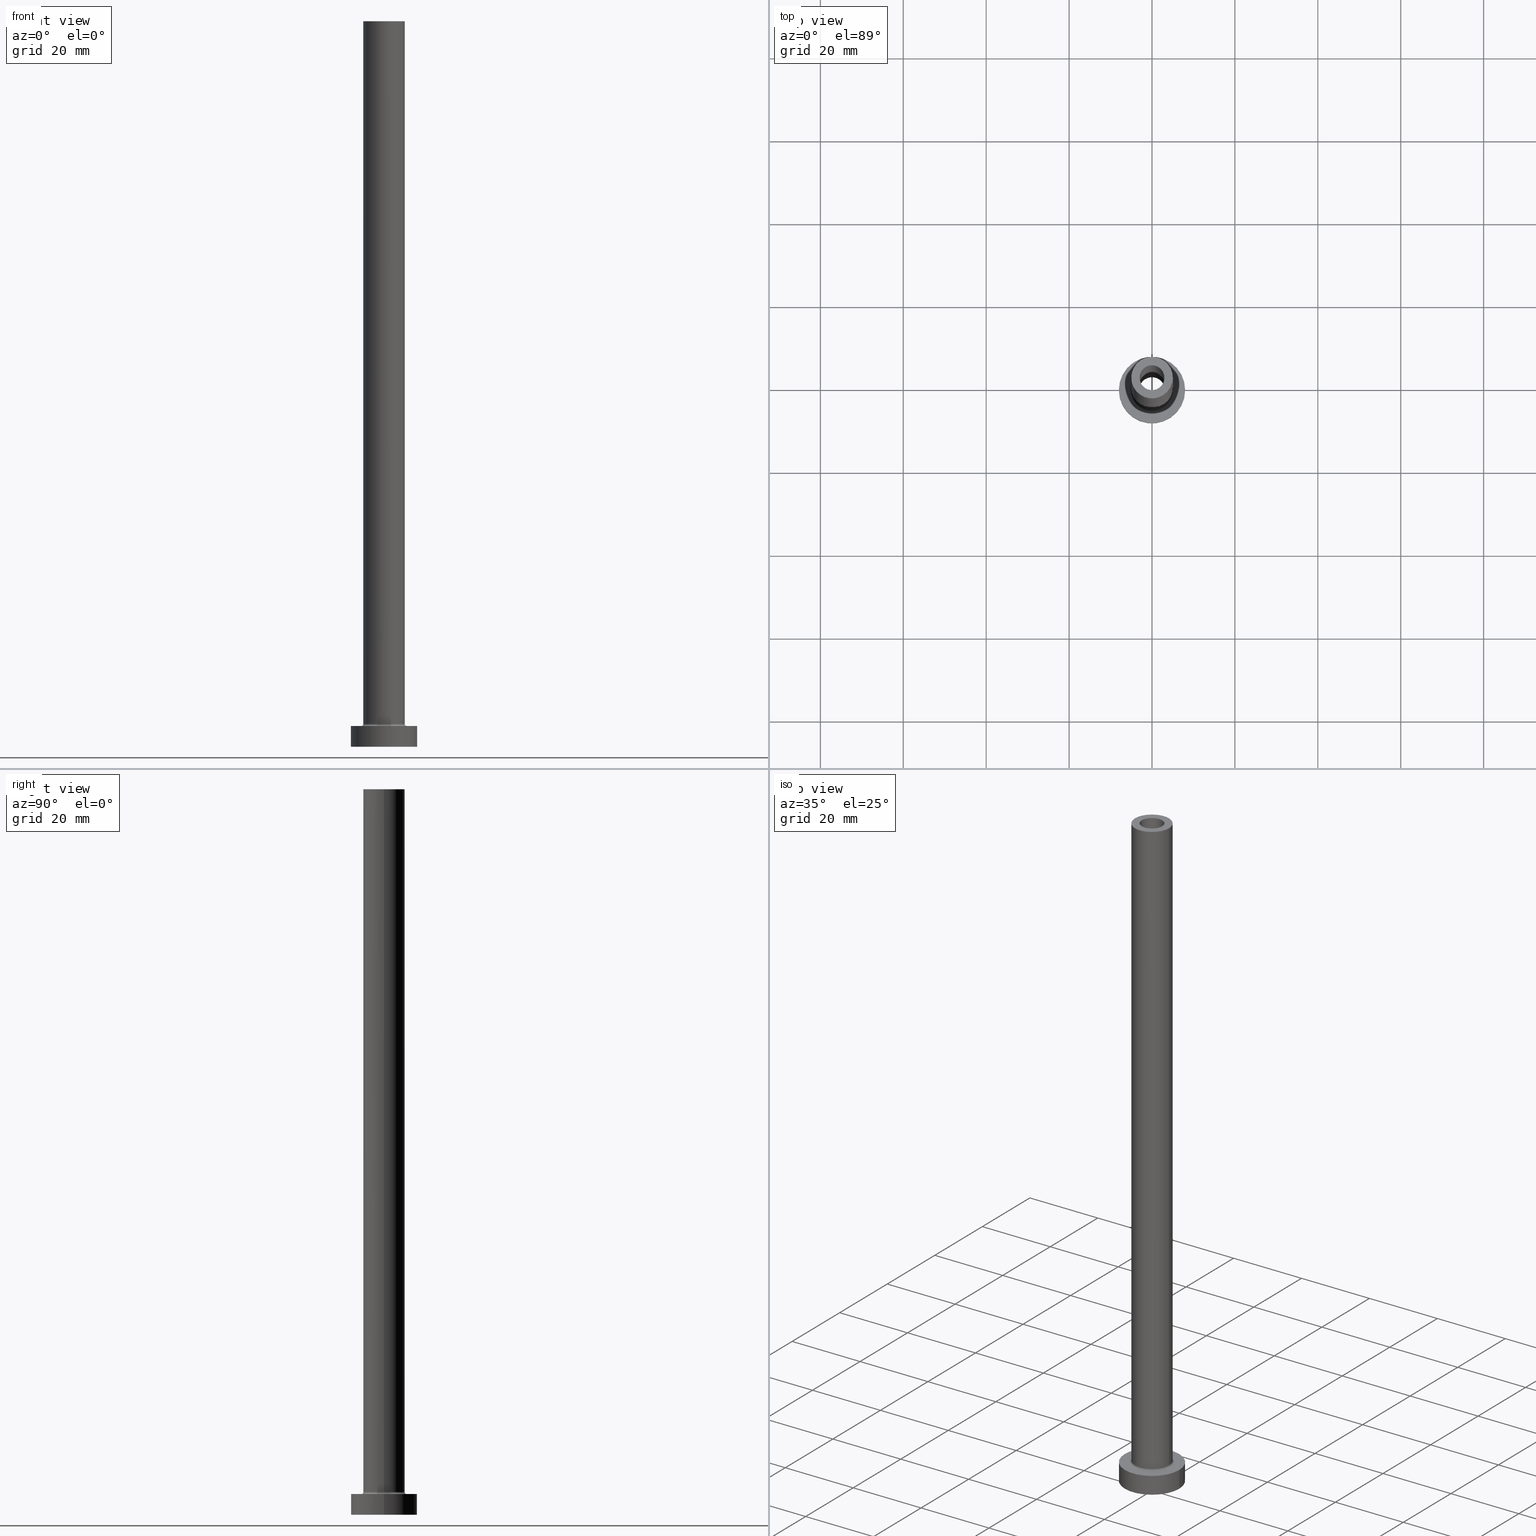
[diagram: canonical four-view strip — front | top / right | iso, engineering-drawing reading convention]
A machine part, canonical four-view strip (front | top / right | iso — engineering-drawing reading convention). The complete STEP part file that produces these views, byte-faithful:
ISO-10303-21;
HEADER;
FILE_DESCRIPTION (( 'STEP AP203' ),
    '1' );
FILE_NAME ('6269.STEP',
    '2023-02-13T09:14:00',
    ( '' ),
    ( '' ),
    'SwSTEP 2.0',
    'SolidWorks 2019',
    '' );
FILE_SCHEMA (( 'CONFIG_CONTROL_DESIGN' ));
ENDSEC;

DATA;
#1 = ORIENTED_EDGE ( 'NONE', *, *, #292, .F. ) ;
#2 = DIRECTION ( 'NONE',  ( 0.000000000000000000, 0.000000000000000000, -1.000000000000000000 ) ) ;
#3 = DIRECTION ( 'NONE',  ( 1.000000000000000000, 0.000000000000000000, 0.000000000000000000 ) ) ;
#4 = AXIS2_PLACEMENT_3D ( 'NONE', #392, #216, #356 ) ;
#5 = ADVANCED_FACE ( 'NONE', ( #42 ), #6, .F. ) ;
#6 = CYLINDRICAL_SURFACE ( 'NONE', #373, 3.000000000000000444 ) ;
#7 = MANIFOLD_SOLID_BREP ( 'Odebrat vysunut�m4', #27 ) ;
#8 = ORIENTED_EDGE ( 'NONE', *, *, #93, .T. ) ;
#9 = ORIENTED_EDGE ( 'NONE', *, *, #185, .F. ) ;
#10 = ADVANCED_FACE ( 'NONE', ( #237 ), #153, .T. ) ;
#11 = AXIS2_PLACEMENT_3D ( 'NONE', #416, #94, #137 ) ;
#12 = DIRECTION ( 'NONE',  ( -1.000000000000000000, 0.000000000000000000, 0.000000000000000000 ) ) ;
#13 = CARTESIAN_POINT ( 'NONE',  ( 0.000000000000000000, 0.000000000000000000, 175.0000000000000284 ) ) ;
#14 = CIRCLE ( 'NONE', #91, 3.000000000000000444 ) ;
#15 = CARTESIAN_POINT ( 'NONE',  ( 0.000000000000000000, 0.000000000000000000, 5.000000000000000000 ) ) ;
#16 = APPROVAL_STATUS ( 'not_yet_approved' ) ;
#17 = PERSON_AND_ORGANIZATION_ROLE ( 'classification_officer' ) ;
#18 = DIRECTION ( 'NONE',  ( -1.000000000000000000, 0.000000000000000000, 0.000000000000000000 ) ) ;
#19 = EDGE_LOOP ( 'NONE', ( #371, #306, #113, #347 ) ) ;
#20 = CIRCLE ( 'NONE', #81, 3.150000000000000355 ) ;
#21 = DIRECTION ( 'NONE',  ( 1.000000000000000000, 0.000000000000000000, 0.000000000000000000 ) ) ;
#22 = CARTESIAN_POINT ( 'NONE',  ( -5.000000000000000000, 0.000000000000000000, 5.500000000000005329 ) ) ;
#23 = DIRECTION ( 'NONE',  ( 1.000000000000000000, 0.000000000000000000, 0.000000000000000000 ) ) ;
#24 = DIRECTION ( 'NONE',  ( -0.000000000000000000, -0.000000000000000000, -1.000000000000000000 ) ) ;
#25 = CARTESIAN_POINT ( 'NONE',  ( 0.000000000000000000, 0.000000000000000000, 5.500000000000005329 ) ) ;
#26 = ADVANCED_FACE ( 'NONE', ( #407 ), #48, .F. ) ;
#27 = CLOSED_SHELL ( 'NONE', ( #5, #122, #135, #272, #346, #10, #322, #215, #229, #325, #141, #26, #252, #210 ) ) ;
#28 = FACE_OUTER_BOUND ( 'NONE', #76, .T. ) ;
#29 = FACE_OUTER_BOUND ( 'NONE', #19, .T. ) ;
#30 = CC_DESIGN_PERSON_AND_ORGANIZATION_ASSIGNMENT ( #340, #68, ( #363 ) ) ;
#31 = DIRECTION ( 'NONE',  ( 1.224646799147353207E-16, 1.000000000000000000, -0.000000000000000000 ) ) ;
#32 = DIRECTION ( 'NONE',  ( 0.000000000000000000, -1.000000000000000000, 0.000000000000000000 ) ) ;
#33 = AXIS2_PLACEMENT_3D ( 'NONE', #95, #253, #248 ) ;
#34 = CC_DESIGN_APPROVAL ( #397, ( #284 ) ) ;
#35 = VERTEX_POINT ( 'NONE', #401 ) ;
#36 = DIRECTION ( 'NONE',  ( 0.000000000000000000, 0.000000000000000000, -1.000000000000000000 ) ) ;
#37 = DIRECTION ( 'NONE',  ( 0.000000000000000000, 0.000000000000000000, -1.000000000000000000 ) ) ;
#38 = ORIENTED_EDGE ( 'NONE', *, *, #52, .T. ) ;
#39 = ORIENTED_EDGE ( 'NONE', *, *, #320, .F. ) ;
#40 = CARTESIAN_POINT ( 'NONE',  ( 0.000000000000000000, 0.000000000000000000, 0.000000000000000000 ) ) ;
#41 = PERSON_AND_ORGANIZATION_ROLE ( 'creator' ) ;
#42 = FACE_OUTER_BOUND ( 'NONE', #158, .T. ) ;
#43 = CYLINDRICAL_SURFACE ( 'NONE', #316, 8.000000000000000000 ) ;
#44 = ORIENTED_EDGE ( 'NONE', *, *, #112, .T. ) ;
#45 = FACE_OUTER_BOUND ( 'NONE', #377, .T. ) ;
#46 = CALENDAR_DATE ( 2023, 13, 2 ) ;
#47 = COORDINATED_UNIVERSAL_TIME_OFFSET ( 1, 0, .AHEAD. ) ;
#48 = CYLINDRICAL_SURFACE ( 'NONE', #359, 3.150000000000000355 ) ;
#49 = EDGE_CURVE ( 'NONE', #308, #437, #344, .T. ) ;
#50 = AXIS2_PLACEMENT_3D ( 'NONE', #142, #251, #387 ) ;
#51 = DIRECTION ( 'NONE',  ( 0.000000000000000000, 0.000000000000000000, 1.000000000000000000 ) ) ;
#52 = EDGE_CURVE ( 'NONE', #114, #35, #339, .T. ) ;
#53 = AXIS2_PLACEMENT_3D ( 'NONE', #128, #136, #21 ) ;
#54 = CARTESIAN_POINT ( 'NONE',  ( 0.000000000000000000, 0.000000000000000000, 138.9095454429505310 ) ) ;
#55 = FACE_BOUND ( 'NONE', #66, .T. ) ;
#56 = CARTESIAN_POINT ( 'NONE',  ( 0.000000000000000000, 0.000000000000000000, 0.000000000000000000 ) ) ;
#57 = CIRCLE ( 'NONE', #177, 0.5000000000000004441 ) ;
#58 = DIRECTION ( 'NONE',  ( 0.000000000000000000, 0.000000000000000000, 1.000000000000000000 ) ) ;
#59 = APPLICATION_CONTEXT ( 'configuration controlled 3d designs of mechanical parts and assemblies' ) ;
#60 = LINE ( 'NONE', #222, #195 ) ;
#61 = ORIENTED_EDGE ( 'NONE', *, *, #419, .F. ) ;
#62 = EDGE_CURVE ( 'NONE', #114, #70, #381, .T. ) ;
#63 = FACE_OUTER_BOUND ( 'NONE', #331, .T. ) ;
#64 =( GEOMETRIC_REPRESENTATION_CONTEXT ( 3 ) GLOBAL_UNCERTAINTY_ASSIGNED_CONTEXT ( ( #378 ) ) GLOBAL_UNIT_ASSIGNED_CONTEXT ( ( #357, #390, #180 ) ) REPRESENTATION_CONTEXT ( 'NONE', 'WORKASPACE' ) );
#65 = ORIENTED_EDGE ( 'NONE', *, *, #62, .F. ) ;
#66 = EDGE_LOOP ( 'NONE', ( #338, #190 ) ) ;
#67 = CARTESIAN_POINT ( 'NONE',  ( 3.150000000000000355, 3.857637417314163182E-16, 138.9095454429505310 ) ) ;
#68 = PERSON_AND_ORGANIZATION_ROLE ( 'design_owner' ) ;
#69 = DIRECTION ( 'NONE',  ( -0.000000000000000000, -0.000000000000000000, -1.000000000000000000 ) ) ;
#70 = VERTEX_POINT ( 'NONE', #22 ) ;
#71 = EDGE_LOOP ( 'NONE', ( #298, #278, #396, #271 ) ) ;
#72 = CARTESIAN_POINT ( 'NONE',  ( -5.500000000000000000, 6.735557395310442023E-16, 5.000000000000002665 ) ) ;
#73 = APPLICATION_PROTOCOL_DEFINITION ( 'international standard', 'config_control_design', 1994, #147 ) ;
#74 = EDGE_CURVE ( 'NONE', #127, #430, #140, .T. ) ;
#75 = EDGE_LOOP ( 'NONE', ( #370, #1 ) ) ;
#76 = EDGE_LOOP ( 'NONE', ( #103, #448, #341, #65 ) ) ;
#77 = ORIENTED_EDGE ( 'NONE', *, *, #87, .T. ) ;
#78 = ORIENTED_EDGE ( 'NONE', *, *, #355, .T. ) ;
#79 = DIRECTION ( 'NONE',  ( 0.000000000000000000, 0.000000000000000000, -1.000000000000000000 ) ) ;
#80 = LOCAL_TIME ( 10, 14, 0.000000000000000000, #107 ) ;
#81 = AXIS2_PLACEMENT_3D ( 'NONE', #173, #133, #282 ) ;
#82 = ORIENTED_EDGE ( 'NONE', *, *, #421, .T. ) ;
#83 = PERSON_AND_ORGANIZATION_ROLE ( 'design_supplier' ) ;
#84 = CARTESIAN_POINT ( 'NONE',  ( 0.000000000000000000, 0.000000000000000000, 5.000000000000000000 ) ) ;
#85 = CIRCLE ( 'NONE', #162, 3.150000000000000355 ) ;
#86 = APPROVAL_PERSON_ORGANIZATION ( #104, #276, #160 ) ;
#87 = EDGE_CURVE ( 'NONE', #193, #399, #323, .T. ) ;
#88 = DIRECTION ( 'NONE',  ( 0.000000000000000000, 0.000000000000000000, 1.000000000000000000 ) ) ;
#89 = COORDINATED_UNIVERSAL_TIME_OFFSET ( 1, 0, .AHEAD. ) ;
#90 = CARTESIAN_POINT ( 'NONE',  ( -5.000000000000000000, 0.000000000000000000, 175.0000000000000284 ) ) ;
#91 = AXIS2_PLACEMENT_3D ( 'NONE', #255, #454, #426 ) ;
#92 = DIRECTION ( 'NONE',  ( 1.000000000000000000, 0.000000000000000000, 0.000000000000000000 ) ) ;
#93 = EDGE_CURVE ( 'NONE', #230, #206, #257, .T. ) ;
#94 = DIRECTION ( 'NONE',  ( 0.000000000000000000, 0.000000000000000000, 1.000000000000000000 ) ) ;
#95 = CARTESIAN_POINT ( 'NONE',  ( 0.000000000000000000, 0.000000000000000000, 5.000000000000000000 ) ) ;
#96 = PLANE ( 'NONE',  #4 ) ;
#97 = CARTESIAN_POINT ( 'NONE',  ( 0.000000000000000000, 0.000000000000000000, 5.500000000000005329 ) ) ;
#98 = AXIS2_PLACEMENT_3D ( 'NONE', #13, #148, #431 ) ;
#99 = DIRECTION ( 'NONE',  ( -1.000000000000000000, 0.000000000000000000, 0.000000000000000000 ) ) ;
#100 = CARTESIAN_POINT ( 'NONE',  ( 8.000000000000000000, 9.797174393178825657E-16, 5.000000000000000000 ) ) ;
#101 = DIRECTION ( 'NONE',  ( 1.000000000000000000, 0.000000000000000000, 0.000000000000000000 ) ) ;
#102 = PRODUCT_DEFINITION_SHAPE ( 'NONE', 'NONE',  #284 ) ;
#103 = ORIENTED_EDGE ( 'NONE', *, *, #374, .F. ) ;
#104 = PERSON_AND_ORGANIZATION ( #202, #130 ) ;
#105 = AXIS2_PLACEMENT_3D ( 'NONE', #181, #332, #101 ) ;
#106 = FACE_OUTER_BOUND ( 'NONE', #71, .T. ) ;
#107 = COORDINATED_UNIVERSAL_TIME_OFFSET ( 1, 0, .AHEAD. ) ;
#108 = EDGE_LOOP ( 'NONE', ( #121, #145 ) ) ;
#109 = ORIENTED_EDGE ( 'NONE', *, *, #182, .T. ) ;
#110 = CC_DESIGN_PERSON_AND_ORGANIZATION_ASSIGNMENT ( #232, #83, ( #245 ) ) ;
#111 = DATE_AND_TIME ( #343, #300 ) ;
#112 = EDGE_CURVE ( 'NONE', #399, #238, #20, .T. ) ;
#113 = ORIENTED_EDGE ( 'NONE', *, *, #62, .T. ) ;
#114 = VERTEX_POINT ( 'NONE', #90 ) ;
#115 = ORIENTED_EDGE ( 'NONE', *, *, #74, .F. ) ;
#116 = APPROVAL_DATE_TIME ( #439, #397 ) ;
#117 = COORDINATED_UNIVERSAL_TIME_OFFSET ( 1, 0, .AHEAD. ) ;
#118 = EDGE_CURVE ( 'NONE', #70, #247, #214, .T. ) ;
#119 = CIRCLE ( 'NONE', #244, 8.000000000000000000 ) ;
#120 = CIRCLE ( 'NONE', #350, 8.000000000000000000 ) ;
#121 = ORIENTED_EDGE ( 'NONE', *, *, #419, .T. ) ;
#122 = ADVANCED_FACE ( 'NONE', ( #450 ), #285, .F. ) ;
#123 = TOROIDAL_SURFACE ( 'NONE', #105, 5.500000000000000000, 0.5000000000000000000 ) ;
#124 = DIRECTION ( 'NONE',  ( 1.000000000000000000, 0.000000000000000000, 0.000000000000000000 ) ) ;
#125 = LOCAL_TIME ( 10, 14, 0.000000000000000000, #402 ) ;
#126 = EDGE_CURVE ( 'NONE', #308, #230, #119, .T. ) ;
#127 = VERTEX_POINT ( 'NONE', #418 ) ;
#128 = CARTESIAN_POINT ( 'NONE',  ( 0.000000000000000000, 0.000000000000000000, 5.500000000000005329 ) ) ;
#129 = CARTESIAN_POINT ( 'NONE',  ( 8.000000000000000000, 9.797174393178825657E-16, 5.000000000000000000 ) ) ;
#130 = ORGANIZATION ( 'NEUR�EN�', 'NEUR�EN�', '' ) ;
#131 = APPROVAL_PERSON_ORGANIZATION ( #157, #385, #250 ) ;
#132 = PLANE ( 'NONE',  #11 ) ;
#133 = DIRECTION ( 'NONE',  ( -0.000000000000000000, -0.000000000000000000, -1.000000000000000000 ) ) ;
#134 = CARTESIAN_POINT ( 'NONE',  ( 0.000000000000000000, 0.000000000000000000, 175.0000000000000284 ) ) ;
#135 = ADVANCED_FACE ( 'NONE', ( #175 ), #262, .F. ) ;
#136 = DIRECTION ( 'NONE',  ( 0.000000000000000000, 0.000000000000000000, 1.000000000000000000 ) ) ;
#137 = DIRECTION ( 'NONE',  ( 1.000000000000000000, 0.000000000000000000, -0.000000000000000000 ) ) ;
#138 = CYLINDRICAL_SURFACE ( 'NONE', #440, 5.000000000000000000 ) ;
#139 = FACE_BOUND ( 'NONE', #334, .T. ) ;
#140 = CIRCLE ( 'NONE', #267, 3.000000000000000444 ) ;
#141 = ADVANCED_FACE ( 'NONE', ( #218 ), #123, .F. ) ;
#142 = CARTESIAN_POINT ( 'NONE',  ( 0.000000000000000000, 0.000000000000000000, 175.0000000000000284 ) ) ;
#143 = ORIENTED_EDGE ( 'NONE', *, *, #118, .F. ) ;
#144 = CARTESIAN_POINT ( 'NONE',  ( 0.000000000000000000, 0.000000000000000000, 130.0000000000000000 ) ) ;
#145 = ORIENTED_EDGE ( 'NONE', *, *, #126, .T. ) ;
#146 = DIRECTION ( 'NONE',  ( -1.000000000000000000, 1.224646799147351482E-16, 0.000000000000000000 ) ) ;
#147 = APPLICATION_CONTEXT ( 'configuration controlled 3d designs of mechanical parts and assemblies' ) ;
#148 = DIRECTION ( 'NONE',  ( 0.000000000000000000, 0.000000000000000000, 1.000000000000000000 ) ) ;
#149 = AXIS2_PLACEMENT_3D ( 'NONE', #186, #328, #3 ) ;
#150 = CARTESIAN_POINT ( 'NONE',  ( -8.000000000000000000, 0.000000000000000000, 0.000000000000000000 ) ) ;
#151 = ORIENTED_EDGE ( 'NONE', *, *, #364, .T. ) ;
#152 = EDGE_LOOP ( 'NONE', ( #38, #369 ) ) ;
#153 = CYLINDRICAL_SURFACE ( 'NONE', #324, 8.000000000000000000 ) ;
#154 = DIRECTION ( 'NONE',  ( -1.000000000000000000, 0.000000000000000000, 0.000000000000000000 ) ) ;
#155 = CARTESIAN_POINT ( 'NONE',  ( 0.000000000000000000, 0.000000000000000000, 130.0000000000000000 ) ) ;
#156 = EDGE_LOOP ( 'NONE', ( #82, #78, #109, #443 ) ) ;
#157 = PERSON_AND_ORGANIZATION ( #202, #130 ) ;
#158 = EDGE_LOOP ( 'NONE', ( #263, #352, #163, #456 ) ) ;
#159 = DIRECTION ( 'NONE',  ( 1.000000000000000000, 0.000000000000000000, 0.000000000000000000 ) ) ;
#160 = APPROVAL_ROLE ( '' ) ;
#161 = CARTESIAN_POINT ( 'NONE',  ( 0.000000000000000000, 0.000000000000000000, 5.000000000000000000 ) ) ;
#162 = AXIS2_PLACEMENT_3D ( 'NONE', #40, #362, #330 ) ;
#163 = ORIENTED_EDGE ( 'NONE', *, *, #442, .F. ) ;
#164 = ORIENTED_EDGE ( 'NONE', *, *, #188, .T. ) ;
#165 = VERTEX_POINT ( 'NONE', #72 ) ;
#166 = CC_DESIGN_DATE_AND_TIME_ASSIGNMENT ( #205, #429, ( #398 ) ) ;
#167 = DIRECTION ( 'NONE',  ( 0.000000000000000000, 0.000000000000000000, -1.000000000000000000 ) ) ;
#168 = ORIENTED_EDGE ( 'NONE', *, *, #188, .F. ) ;
#169 = MECHANICAL_CONTEXT ( 'NONE', #59, 'mechanical' ) ;
#170 = CIRCLE ( 'NONE', #413, 0.5000000000000004441 ) ;
#171 = AXIS2_PLACEMENT_3D ( 'NONE', #15, #51, #353 ) ;
#172 = CARTESIAN_POINT ( 'NONE',  ( 8.000000000000000000, 9.797174393178825657E-16, 0.000000000000000000 ) ) ;
#173 = CARTESIAN_POINT ( 'NONE',  ( 0.000000000000000000, 0.000000000000000000, 0.000000000000000000 ) ) ;
#174 = VECTOR ( 'NONE', #391, 1000.000000000000000 ) ;
#175 = FACE_OUTER_BOUND ( 'NONE', #305, .T. ) ;
#176 = EDGE_CURVE ( 'NONE', #200, #409, #184, .T. ) ;
#177 = AXIS2_PLACEMENT_3D ( 'NONE', #224, #32, #167 ) ;
#178 = DIRECTION ( 'NONE',  ( 1.000000000000000000, 0.000000000000000000, 0.000000000000000000 ) ) ;
#179 = EDGE_CURVE ( 'NONE', #430, #200, #60, .T. ) ;
#180 =( NAMED_UNIT ( * ) SI_UNIT ( $, .STERADIAN. ) SOLID_ANGLE_UNIT ( ) );
#181 = CARTESIAN_POINT ( 'NONE',  ( 0.000000000000000000, 0.000000000000000000, 5.500000000000005329 ) ) ;
#182 = EDGE_CURVE ( 'NONE', #238, #399, #85, .T. ) ;
#183 = DIRECTION ( 'NONE',  ( -0.000000000000000000, -0.000000000000000000, -1.000000000000000000 ) ) ;
#184 = CIRCLE ( 'NONE', #297, 3.000000000000000444 ) ;
#185 = EDGE_CURVE ( 'NONE', #70, #165, #170, .T. ) ;
#186 = CARTESIAN_POINT ( 'NONE',  ( 0.000000000000000000, 0.000000000000000000, 5.000000000000000000 ) ) ;
#187 = LOCAL_TIME ( 10, 14, 0.000000000000000000, #89 ) ;
#188 = EDGE_CURVE ( 'NONE', #165, #293, #354, .T. ) ;
#189 = EDGE_LOOP ( 'NONE', ( #295, #61, #8, #151 ) ) ;
#190 = ORIENTED_EDGE ( 'NONE', *, *, #176, .T. ) ;
#191 = DIRECTION ( 'NONE',  ( 1.000000000000000000, 0.000000000000000000, 0.000000000000000000 ) ) ;
#192 = ORIENTED_EDGE ( 'NONE', *, *, #49, .T. ) ;
#193 = VERTEX_POINT ( 'NONE', #296 ) ;
#194 = CARTESIAN_POINT ( 'NONE',  ( 0.000000000000000000, 0.000000000000000000, 138.9095454429505310 ) ) ;
#195 = VECTOR ( 'NONE', #36, 1000.000000000000000 ) ;
#196 = APPROVAL_ROLE ( '' ) ;
#197 = CIRCLE ( 'NONE', #207, 3.000000000000000444 ) ;
#198 = CC_DESIGN_SECURITY_CLASSIFICATION ( #398, ( #245 ) ) ;
#199 = PLANE ( 'NONE',  #171 ) ;
#200 = VERTEX_POINT ( 'NONE', #432 ) ;
#201 = EDGE_LOOP ( 'NONE', ( #337, #460, #77, #44 ) ) ;
#202 = PERSON ( 'NEUR�EN�', 'NEUR�EN�', 'NEUR�EN�', ('NEUR�EN�'), ('NEUR�EN�'), ('NEUR�EN�') ) ;
#203 = DIRECTION ( 'NONE',  ( -0.000000000000000000, -0.000000000000000000, -1.000000000000000000 ) ) ;
#204 = DESIGN_CONTEXT ( 'detailed design', #147, 'design' ) ;
#205 = DATE_AND_TIME ( #406, #351 ) ;
#206 = VERTEX_POINT ( 'NONE', #150 ) ;
#207 = AXIS2_PLACEMENT_3D ( 'NONE', #446, #410, #380 ) ;
#208 = DIRECTION ( 'NONE',  ( 0.000000000000000000, 0.000000000000000000, -1.000000000000000000 ) ) ;
#209 = CC_DESIGN_PERSON_AND_ORGANIZATION_ASSIGNMENT ( #368, #333, ( #284 ) ) ;
#210 = ADVANCED_FACE ( 'NONE', ( #106 ), #268, .F. ) ;
#211 = ORIENTED_EDGE ( 'NONE', *, *, #182, .F. ) ;
#212 = SHAPE_DEFINITION_REPRESENTATION ( #102, #220 ) ;
#213 = AXIS2_PLACEMENT_3D ( 'NONE', #240, #342, #303 ) ;
#214 = CIRCLE ( 'NONE', #53, 5.000000000000000000 ) ;
#215 = ADVANCED_FACE ( 'NONE', ( #394, #63 ), #132, .F. ) ;
#216 = DIRECTION ( 'NONE',  ( 0.000000000000000000, 0.000000000000000000, 1.000000000000000000 ) ) ;
#217 = AXIS2_PLACEMENT_3D ( 'NONE', #326, #455, #219 ) ;
#218 = FACE_OUTER_BOUND ( 'NONE', #379, .T. ) ;
#219 = DIRECTION ( 'NONE',  ( 1.000000000000000000, 0.000000000000000000, 0.000000000000000000 ) ) ;
#220 = ADVANCED_BREP_SHAPE_REPRESENTATION ( '6269', ( #7, #452 ), #64 ) ;
#221 = CARTESIAN_POINT ( 'NONE',  ( -8.000000000000000000, 0.000000000000000000, 5.000000000000000000 ) ) ;
#222 = CARTESIAN_POINT ( 'NONE',  ( 3.000000000000000444, 3.673940397442060361E-16, 175.0000000000000284 ) ) ;
#223 = EDGE_CURVE ( 'NONE', #437, #206, #226, .T. ) ;
#224 = CARTESIAN_POINT ( 'NONE',  ( 5.500000000000000000, 0.000000000000000000, 5.500000000000005329 ) ) ;
#225 = DIRECTION ( 'NONE',  ( 0.000000000000000000, 0.000000000000000000, -1.000000000000000000 ) ) ;
#226 = CIRCLE ( 'NONE', #217, 8.000000000000000000 ) ;
#227 = ORIENTED_EDGE ( 'NONE', *, *, #434, .F. ) ;
#228 = ORIENTED_EDGE ( 'NONE', *, *, #364, .F. ) ;
#229 = ADVANCED_FACE ( 'NONE', ( #29 ), #321, .T. ) ;
#230 = VERTEX_POINT ( 'NONE', #221 ) ;
#231 = ORIENTED_EDGE ( 'NONE', *, *, #185, .T. ) ;
#232 = PERSON_AND_ORGANIZATION ( #202, #130 ) ;
#233 = ORIENTED_EDGE ( 'NONE', *, *, #93, .F. ) ;
#234 = AXIS2_PLACEMENT_3D ( 'NONE', #256, #225, #99 ) ;
#235 = APPROVAL_DATE_TIME ( #273, #385 ) ;
#236 = CC_DESIGN_APPROVAL ( #385, ( #245 ) ) ;
#237 = FACE_OUTER_BOUND ( 'NONE', #189, .T. ) ;
#238 = VERTEX_POINT ( 'NONE', #288 ) ;
#239 = APPROVAL_DATE_TIME ( #335, #276 ) ;
#240 = CARTESIAN_POINT ( 'NONE',  ( 0.000000000000000000, 0.000000000000000000, 0.000000000000000000 ) ) ;
#241 = DIRECTION ( 'NONE',  ( 0.000000000000000000, 0.000000000000000000, 1.000000000000000000 ) ) ;
#242 = CC_DESIGN_DATE_AND_TIME_ASSIGNMENT ( #111, #269, ( #284 ) ) ;
#243 = EDGE_CURVE ( 'NONE', #127, #409, #259, .T. ) ;
#244 = AXIS2_PLACEMENT_3D ( 'NONE', #414, #422, #283 ) ;
#245 = PRODUCT_DEFINITION_FORMATION_WITH_SPECIFIED_SOURCE ( 'LIBOVOLN�', '', #363, .NOT_KNOWN. ) ;
#246 = SECURITY_CLASSIFICATION_LEVEL ( 'unclassified' ) ;
#247 = VERTEX_POINT ( 'NONE', #451 ) ;
#248 = DIRECTION ( 'NONE',  ( 1.000000000000000000, 0.000000000000000000, 0.000000000000000000 ) ) ;
#249 = CIRCLE ( 'NONE', #33, 5.500000000000000000 ) ;
#250 = APPROVAL_ROLE ( '' ) ;
#251 = DIRECTION ( 'NONE',  ( -0.000000000000000000, -0.000000000000000000, -1.000000000000000000 ) ) ;
#252 = ADVANCED_FACE ( 'NONE', ( #55, #358 ), #96, .F. ) ;
#253 = DIRECTION ( 'NONE',  ( -0.000000000000000000, -0.000000000000000000, -1.000000000000000000 ) ) ;
#254 = CARTESIAN_POINT ( 'NONE',  ( 0.000000000000000000, 0.000000000000000000, 130.0000000000000000 ) ) ;
#255 = CARTESIAN_POINT ( 'NONE',  ( 0.000000000000000000, 0.000000000000000000, 130.0000000000000000 ) ) ;
#256 = CARTESIAN_POINT ( 'NONE',  ( 0.000000000000000000, 0.000000000000000000, 175.0000000000000284 ) ) ;
#257 = LINE ( 'NONE', #386, #425 ) ;
#258 = EDGE_CURVE ( 'NONE', #247, #70, #289, .T. ) ;
#259 = LINE ( 'NONE', #427, #395 ) ;
#260 = APPLICATION_PROTOCOL_DEFINITION ( 'international standard', 'config_control_design', 1994, #59 ) ;
#261 = CARTESIAN_POINT ( 'NONE',  ( 5.500000000000000000, 0.000000000000000000, 5.000000000000002665 ) ) ;
#262 = TOROIDAL_SURFACE ( 'NONE', #403, 5.500000000000000000, 0.5000000000000000000 ) ;
#263 = ORIENTED_EDGE ( 'NONE', *, *, #74, .T. ) ;
#264 = CIRCLE ( 'NONE', #98, 5.000000000000000000 ) ;
#265 = ORIENTED_EDGE ( 'NONE', *, *, #258, .F. ) ;
#266 = CARTESIAN_POINT ( 'NONE',  ( 5.000000000000000000, 6.123233995736766282E-16, 175.0000000000000284 ) ) ;
#267 = AXIS2_PLACEMENT_3D ( 'NONE', #459, #294, #191 ) ;
#268 = CYLINDRICAL_SURFACE ( 'NONE', #234, 3.000000000000000444 ) ;
#269 = DATE_TIME_ROLE ( 'creation_date' ) ;
#270 = CARTESIAN_POINT ( 'NONE',  ( -3.000000000000000444, 0.000000000000000000, 130.0000000000000000 ) ) ;
#271 = ORIENTED_EDGE ( 'NONE', *, *, #176, .F. ) ;
#272 = ADVANCED_FACE ( 'NONE', ( #28 ), #138, .T. ) ;
#273 = DATE_AND_TIME ( #46, #80 ) ;
#274 = DIRECTION ( 'NONE',  ( 0.000000000000000000, 0.000000000000000000, 1.000000000000000000 ) ) ;
#275 = APPROVAL_STATUS ( 'not_yet_approved' ) ;
#276 = APPROVAL ( #16, 'NEUR�EN�' ) ;
#277 = DIRECTION ( 'NONE',  ( -0.000000000000000000, -0.000000000000000000, -1.000000000000000000 ) ) ;
#278 = ORIENTED_EDGE ( 'NONE', *, *, #320, .T. ) ;
#279 = CARTESIAN_POINT ( 'NONE',  ( 0.000000000000000000, 0.000000000000000000, 175.0000000000000284 ) ) ;
#280 = DIRECTION ( 'NONE',  ( 1.000000000000000000, 0.000000000000000000, 0.000000000000000000 ) ) ;
#281 = CARTESIAN_POINT ( 'NONE',  ( -5.000000000000000000, 0.000000000000000000, 175.0000000000000284 ) ) ;
#282 = DIRECTION ( 'NONE',  ( 1.000000000000000000, 0.000000000000000000, 0.000000000000000000 ) ) ;
#283 = DIRECTION ( 'NONE',  ( 1.000000000000000000, 0.000000000000000000, 0.000000000000000000 ) ) ;
#284 = PRODUCT_DEFINITION ( 'NEZN�M�', '', #245, #204 ) ;
#285 = CYLINDRICAL_SURFACE ( 'NONE', #388, 3.150000000000000355 ) ;
#286 = DIRECTION ( 'NONE',  ( -1.000000000000000000, 0.000000000000000000, 0.000000000000000000 ) ) ;
#287 = DIRECTION ( 'NONE',  ( 0.000000000000000000, 0.000000000000000000, -1.000000000000000000 ) ) ;
#288 = CARTESIAN_POINT ( 'NONE',  ( 3.150000000000000355, 3.857637417314163182E-16, 0.000000000000000000 ) ) ;
#289 = CIRCLE ( 'NONE', #348, 5.000000000000000000 ) ;
#290 = CARTESIAN_POINT ( 'NONE',  ( 0.000000000000000000, 0.000000000000000000, 175.0000000000000284 ) ) ;
#291 = AXIS2_PLACEMENT_3D ( 'NONE', #290, #241, #317 ) ;
#292 = EDGE_CURVE ( 'NONE', #301, #193, #327, .T. ) ;
#293 = VERTEX_POINT ( 'NONE', #261 ) ;
#294 = DIRECTION ( 'NONE',  ( 0.000000000000000000, 0.000000000000000000, 1.000000000000000000 ) ) ;
#295 = ORIENTED_EDGE ( 'NONE', *, *, #49, .F. ) ;
#296 = CARTESIAN_POINT ( 'NONE',  ( -3.150000000000000355, 0.000000000000000000, 130.0000000000000000 ) ) ;
#297 = AXIS2_PLACEMENT_3D ( 'NONE', #155, #360, #393 ) ;
#298 = ORIENTED_EDGE ( 'NONE', *, *, #179, .F. ) ;
#299 = PERSON_AND_ORGANIZATION ( #202, #130 ) ;
#300 = LOCAL_TIME ( 10, 14, 0.000000000000000000, #47 ) ;
#301 = VERTEX_POINT ( 'NONE', #424 ) ;
#302 = DIRECTION ( 'NONE',  ( -1.000000000000000000, 0.000000000000000000, 0.000000000000000000 ) ) ;
#303 = DIRECTION ( 'NONE',  ( 1.000000000000000000, 0.000000000000000000, 0.000000000000000000 ) ) ;
#304 = VECTOR ( 'NONE', #277, 1000.000000000000000 ) ;
#305 = EDGE_LOOP ( 'NONE', ( #143, #231, #227, #400 ) ) ;
#306 = ORIENTED_EDGE ( 'NONE', *, *, #52, .F. ) ;
#307 = PERSON_AND_ORGANIZATION ( #202, #130 ) ;
#308 = VERTEX_POINT ( 'NONE', #100 ) ;
#309 = EDGE_CURVE ( 'NONE', #247, #293, #57, .T. ) ;
#310 = DIRECTION ( 'NONE',  ( -0.000000000000000000, -0.000000000000000000, -1.000000000000000000 ) ) ;
#311 = LINE ( 'NONE', #67, #312 ) ;
#312 = VECTOR ( 'NONE', #2, 1000.000000000000000 ) ;
#313 = CARTESIAN_POINT ( 'NONE',  ( 0.000000000000000000, 0.000000000000000000, 175.0000000000000284 ) ) ;
#314 = PERSON_AND_ORGANIZATION ( #202, #130 ) ;
#315 = ORIENTED_EDGE ( 'NONE', *, *, #126, .F. ) ;
#316 = AXIS2_PLACEMENT_3D ( 'NONE', #161, #203, #154 ) ;
#317 = DIRECTION ( 'NONE',  ( 1.000000000000000000, 0.000000000000000000, -0.000000000000000000 ) ) ;
#318 = DIRECTION ( 'NONE',  ( 0.000000000000000000, 0.000000000000000000, 1.000000000000000000 ) ) ;
#319 = DIRECTION ( 'NONE',  ( 0.000000000000000000, 0.000000000000000000, 1.000000000000000000 ) ) ;
#320 = EDGE_CURVE ( 'NONE', #430, #127, #197, .T. ) ;
#321 = CYLINDRICAL_SURFACE ( 'NONE', #50, 5.000000000000000000 ) ;
#322 = ADVANCED_FACE ( 'NONE', ( #411, #345 ), #199, .T. ) ;
#323 = LINE ( 'NONE', #349, #174 ) ;
#324 = AXIS2_PLACEMENT_3D ( 'NONE', #84, #310, #302 ) ;
#325 = ADVANCED_FACE ( 'NONE', ( #139, #420 ), #457, .T. ) ;
#326 = CARTESIAN_POINT ( 'NONE',  ( 0.000000000000000000, 0.000000000000000000, 0.000000000000000000 ) ) ;
#327 = CIRCLE ( 'NONE', #336, 3.150000000000000355 ) ;
#328 = DIRECTION ( 'NONE',  ( -0.000000000000000000, -0.000000000000000000, -1.000000000000000000 ) ) ;
#329 = DIRECTION ( 'NONE',  ( 0.000000000000000000, 0.000000000000000000, 1.000000000000000000 ) ) ;
#330 = DIRECTION ( 'NONE',  ( 1.000000000000000000, 0.000000000000000000, 0.000000000000000000 ) ) ;
#331 = EDGE_LOOP ( 'NONE', ( #228, #445 ) ) ;
#332 = DIRECTION ( 'NONE',  ( 0.000000000000000000, 0.000000000000000000, 1.000000000000000000 ) ) ;
#333 = PERSON_AND_ORGANIZATION_ROLE ( 'creator' ) ;
#334 = EDGE_LOOP ( 'NONE', ( #115, #39 ) ) ;
#335 = DATE_AND_TIME ( #383, #187 ) ;
#336 = AXIS2_PLACEMENT_3D ( 'NONE', #254, #389, #178 ) ;
#337 = ORIENTED_EDGE ( 'NONE', *, *, #355, .F. ) ;
#338 = ORIENTED_EDGE ( 'NONE', *, *, #442, .T. ) ;
#339 = CIRCLE ( 'NONE', #449, 5.000000000000000000 ) ;
#340 = PERSON_AND_ORGANIZATION ( #202, #130 ) ;
#341 = ORIENTED_EDGE ( 'NONE', *, *, #258, .T. ) ;
#342 = DIRECTION ( 'NONE',  ( 0.000000000000000000, 0.000000000000000000, 1.000000000000000000 ) ) ;
#343 = CALENDAR_DATE ( 2023, 13, 2 ) ;
#344 = LINE ( 'NONE', #129, #304 ) ;
#345 = FACE_OUTER_BOUND ( 'NONE', #108, .T. ) ;
#346 = ADVANCED_FACE ( 'NONE', ( #45 ), #43, .T. ) ;
#347 = ORIENTED_EDGE ( 'NONE', *, *, #118, .T. ) ;
#348 = AXIS2_PLACEMENT_3D ( 'NONE', #25, #58, #361 ) ;
#349 = CARTESIAN_POINT ( 'NONE',  ( -3.150000000000000355, 0.000000000000000000, 138.9095454429505310 ) ) ;
#350 = AXIS2_PLACEMENT_3D ( 'NONE', #438, #274, #159 ) ;
#351 = LOCAL_TIME ( 10, 14, 0.000000000000000000, #117 ) ;
#352 = ORIENTED_EDGE ( 'NONE', *, *, #179, .T. ) ;
#353 = DIRECTION ( 'NONE',  ( 1.000000000000000000, 0.000000000000000000, -0.000000000000000000 ) ) ;
#354 = CIRCLE ( 'NONE', #149, 5.500000000000000000 ) ;
#355 = EDGE_CURVE ( 'NONE', #301, #238, #311, .T. ) ;
#356 = DIRECTION ( 'NONE',  ( 1.000000000000000000, 0.000000000000000000, -0.000000000000000000 ) ) ;
#357 =( LENGTH_UNIT ( ) NAMED_UNIT ( * ) SI_UNIT ( .MILLI., .METRE. ) );
#358 = FACE_OUTER_BOUND ( 'NONE', #75, .T. ) ;
#359 = AXIS2_PLACEMENT_3D ( 'NONE', #194, #208, #436 ) ;
#360 = DIRECTION ( 'NONE',  ( 0.000000000000000000, 0.000000000000000000, 1.000000000000000000 ) ) ;
#361 = DIRECTION ( 'NONE',  ( 1.000000000000000000, 0.000000000000000000, 0.000000000000000000 ) ) ;
#362 = DIRECTION ( 'NONE',  ( -0.000000000000000000, -0.000000000000000000, -1.000000000000000000 ) ) ;
#363 = PRODUCT ( '6269', '6269', '', ( #169 ) ) ;
#364 = EDGE_CURVE ( 'NONE', #206, #437, #447, .T. ) ;
#365 = PRODUCT_RELATED_PRODUCT_CATEGORY ( 'detail', '', ( #363 ) ) ;
#366 = ORIENTED_EDGE ( 'NONE', *, *, #309, .T. ) ;
#367 = CC_DESIGN_PERSON_AND_ORGANIZATION_ASSIGNMENT ( #307, #41, ( #245 ) ) ;
#368 = PERSON_AND_ORGANIZATION ( #202, #130 ) ;
#369 = ORIENTED_EDGE ( 'NONE', *, *, #374, .T. ) ;
#370 = ORIENTED_EDGE ( 'NONE', *, *, #421, .F. ) ;
#371 = ORIENTED_EDGE ( 'NONE', *, *, #376, .F. ) ;
#372 = CARTESIAN_POINT ( 'NONE',  ( -3.150000000000000355, 0.000000000000000000, 0.000000000000000000 ) ) ;
#373 = AXIS2_PLACEMENT_3D ( 'NONE', #313, #79, #12 ) ;
#374 = EDGE_CURVE ( 'NONE', #35, #114, #264, .T. ) ;
#375 = CALENDAR_DATE ( 2023, 13, 2 ) ;
#376 = EDGE_CURVE ( 'NONE', #35, #247, #433, .T. ) ;
#377 = EDGE_LOOP ( 'NONE', ( #315, #192, #428, #233 ) ) ;
#378 = UNCERTAINTY_MEASURE_WITH_UNIT (LENGTH_MEASURE( 1.000000000000000082E-05 ), #357, 'distance_accuracy_value', 'NONE');
#379 = EDGE_LOOP ( 'NONE', ( #9, #265, #366, #168 ) ) ;
#380 = DIRECTION ( 'NONE',  ( 1.000000000000000000, 0.000000000000000000, 0.000000000000000000 ) ) ;
#381 = LINE ( 'NONE', #281, #435 ) ;
#382 = CC_DESIGN_PERSON_AND_ORGANIZATION_ASSIGNMENT ( #314, #17, ( #398 ) ) ;
#383 = CALENDAR_DATE ( 2023, 13, 2 ) ;
#384 = AXIS2_PLACEMENT_3D ( 'NONE', #144, #319, #23 ) ;
#385 = APPROVAL ( #405, 'NEUR�EN�' ) ;
#386 = CARTESIAN_POINT ( 'NONE',  ( -8.000000000000000000, 0.000000000000000000, 5.000000000000000000 ) ) ;
#387 = DIRECTION ( 'NONE',  ( -1.000000000000000000, 0.000000000000000000, 0.000000000000000000 ) ) ;
#388 = AXIS2_PLACEMENT_3D ( 'NONE', #54, #287, #18 ) ;
#389 = DIRECTION ( 'NONE',  ( 0.000000000000000000, 0.000000000000000000, 1.000000000000000000 ) ) ;
#390 =( NAMED_UNIT ( * ) PLANE_ANGLE_UNIT ( ) SI_UNIT ( $, .RADIAN. ) );
#391 = DIRECTION ( 'NONE',  ( 0.000000000000000000, 0.000000000000000000, -1.000000000000000000 ) ) ;
#392 = CARTESIAN_POINT ( 'NONE',  ( 0.000000000000000000, 0.000000000000000000, 130.0000000000000000 ) ) ;
#393 = DIRECTION ( 'NONE',  ( 1.000000000000000000, 0.000000000000000000, 0.000000000000000000 ) ) ;
#394 = FACE_BOUND ( 'NONE', #404, .T. ) ;
#395 = VECTOR ( 'NONE', #37, 1000.000000000000000 ) ;
#396 = ORIENTED_EDGE ( 'NONE', *, *, #243, .T. ) ;
#397 = APPROVAL ( #275, 'NEUR�EN�' ) ;
#398 = SECURITY_CLASSIFICATION ( '', '', #246 ) ;
#399 = VERTEX_POINT ( 'NONE', #372 ) ;
#400 = ORIENTED_EDGE ( 'NONE', *, *, #309, .F. ) ;
#401 = CARTESIAN_POINT ( 'NONE',  ( 5.000000000000000000, 6.123233995736766282E-16, 175.0000000000000284 ) ) ;
#402 = COORDINATED_UNIVERSAL_TIME_OFFSET ( 1, 0, .AHEAD. ) ;
#403 = AXIS2_PLACEMENT_3D ( 'NONE', #97, #318, #280 ) ;
#404 = EDGE_LOOP ( 'NONE', ( #441, #211 ) ) ;
#405 = APPROVAL_STATUS ( 'not_yet_approved' ) ;
#406 = CALENDAR_DATE ( 2023, 13, 2 ) ;
#407 = FACE_OUTER_BOUND ( 'NONE', #201, .T. ) ;
#408 = EDGE_LOOP ( 'NONE', ( #444, #164 ) ) ;
#409 = VERTEX_POINT ( 'NONE', #270 ) ;
#410 = DIRECTION ( 'NONE',  ( 0.000000000000000000, 0.000000000000000000, 1.000000000000000000 ) ) ;
#411 = FACE_BOUND ( 'NONE', #408, .T. ) ;
#412 = DIRECTION ( 'NONE',  ( -0.000000000000000000, -0.000000000000000000, -1.000000000000000000 ) ) ;
#413 = AXIS2_PLACEMENT_3D ( 'NONE', #461, #31, #146 ) ;
#414 = CARTESIAN_POINT ( 'NONE',  ( 0.000000000000000000, 0.000000000000000000, 5.000000000000000000 ) ) ;
#415 = APPROVAL_PERSON_ORGANIZATION ( #299, #397, #196 ) ;
#416 = CARTESIAN_POINT ( 'NONE',  ( 0.000000000000000000, 0.000000000000000000, 0.000000000000000000 ) ) ;
#417 = CARTESIAN_POINT ( 'NONE',  ( 3.000000000000000444, 3.673940397442060361E-16, 175.0000000000000284 ) ) ;
#418 = CARTESIAN_POINT ( 'NONE',  ( -3.000000000000000444, 0.000000000000000000, 175.0000000000000284 ) ) ;
#419 = EDGE_CURVE ( 'NONE', #230, #308, #120, .T. ) ;
#420 = FACE_OUTER_BOUND ( 'NONE', #152, .T. ) ;
#421 = EDGE_CURVE ( 'NONE', #193, #301, #458, .T. ) ;
#422 = DIRECTION ( 'NONE',  ( 0.000000000000000000, 0.000000000000000000, 1.000000000000000000 ) ) ;
#423 = VECTOR ( 'NONE', #69, 1000.000000000000000 ) ;
#424 = CARTESIAN_POINT ( 'NONE',  ( 3.150000000000000355, 3.857637417314163182E-16, 130.0000000000000000 ) ) ;
#425 = VECTOR ( 'NONE', #24, 1000.000000000000000 ) ;
#426 = DIRECTION ( 'NONE',  ( 1.000000000000000000, 0.000000000000000000, 0.000000000000000000 ) ) ;
#427 = CARTESIAN_POINT ( 'NONE',  ( -3.000000000000000444, 0.000000000000000000, 175.0000000000000284 ) ) ;
#428 = ORIENTED_EDGE ( 'NONE', *, *, #223, .T. ) ;
#429 = DATE_TIME_ROLE ( 'classification_date' ) ;
#430 = VERTEX_POINT ( 'NONE', #417 ) ;
#431 = DIRECTION ( 'NONE',  ( 1.000000000000000000, 0.000000000000000000, 0.000000000000000000 ) ) ;
#432 = CARTESIAN_POINT ( 'NONE',  ( 3.000000000000000444, 3.673940397442060361E-16, 130.0000000000000000 ) ) ;
#433 = LINE ( 'NONE', #266, #423 ) ;
#434 = EDGE_CURVE ( 'NONE', #293, #165, #249, .T. ) ;
#435 = VECTOR ( 'NONE', #412, 1000.000000000000000 ) ;
#436 = DIRECTION ( 'NONE',  ( -1.000000000000000000, 0.000000000000000000, 0.000000000000000000 ) ) ;
#437 = VERTEX_POINT ( 'NONE', #172 ) ;
#438 = CARTESIAN_POINT ( 'NONE',  ( 0.000000000000000000, 0.000000000000000000, 5.000000000000000000 ) ) ;
#439 = DATE_AND_TIME ( #375, #125 ) ;
#440 = AXIS2_PLACEMENT_3D ( 'NONE', #134, #183, #286 ) ;
#441 = ORIENTED_EDGE ( 'NONE', *, *, #112, .F. ) ;
#442 = EDGE_CURVE ( 'NONE', #409, #200, #14, .T. ) ;
#443 = ORIENTED_EDGE ( 'NONE', *, *, #87, .F. ) ;
#444 = ORIENTED_EDGE ( 'NONE', *, *, #434, .T. ) ;
#445 = ORIENTED_EDGE ( 'NONE', *, *, #223, .F. ) ;
#446 = CARTESIAN_POINT ( 'NONE',  ( 0.000000000000000000, 0.000000000000000000, 175.0000000000000284 ) ) ;
#447 = CIRCLE ( 'NONE', #213, 8.000000000000000000 ) ;
#448 = ORIENTED_EDGE ( 'NONE', *, *, #376, .T. ) ;
#449 = AXIS2_PLACEMENT_3D ( 'NONE', #279, #88, #92 ) ;
#450 = FACE_OUTER_BOUND ( 'NONE', #156, .T. ) ;
#451 = CARTESIAN_POINT ( 'NONE',  ( 5.000000000000000000, 6.123233995736766282E-16, 5.500000000000005329 ) ) ;
#452 = AXIS2_PLACEMENT_3D ( 'NONE', #56, #329, #124 ) ;
#453 = CC_DESIGN_APPROVAL ( #276, ( #398 ) ) ;
#454 = DIRECTION ( 'NONE',  ( 0.000000000000000000, 0.000000000000000000, 1.000000000000000000 ) ) ;
#455 = DIRECTION ( 'NONE',  ( 0.000000000000000000, 0.000000000000000000, 1.000000000000000000 ) ) ;
#456 = ORIENTED_EDGE ( 'NONE', *, *, #243, .F. ) ;
#457 = PLANE ( 'NONE',  #291 ) ;
#458 = CIRCLE ( 'NONE', #384, 3.150000000000000355 ) ;
#459 = CARTESIAN_POINT ( 'NONE',  ( 0.000000000000000000, 0.000000000000000000, 175.0000000000000284 ) ) ;
#460 = ORIENTED_EDGE ( 'NONE', *, *, #292, .T. ) ;
#461 = CARTESIAN_POINT ( 'NONE',  ( -5.500000000000000000, 6.735557395310442023E-16, 5.500000000000005329 ) ) ;
ENDSEC;
END-ISO-10303-21;
